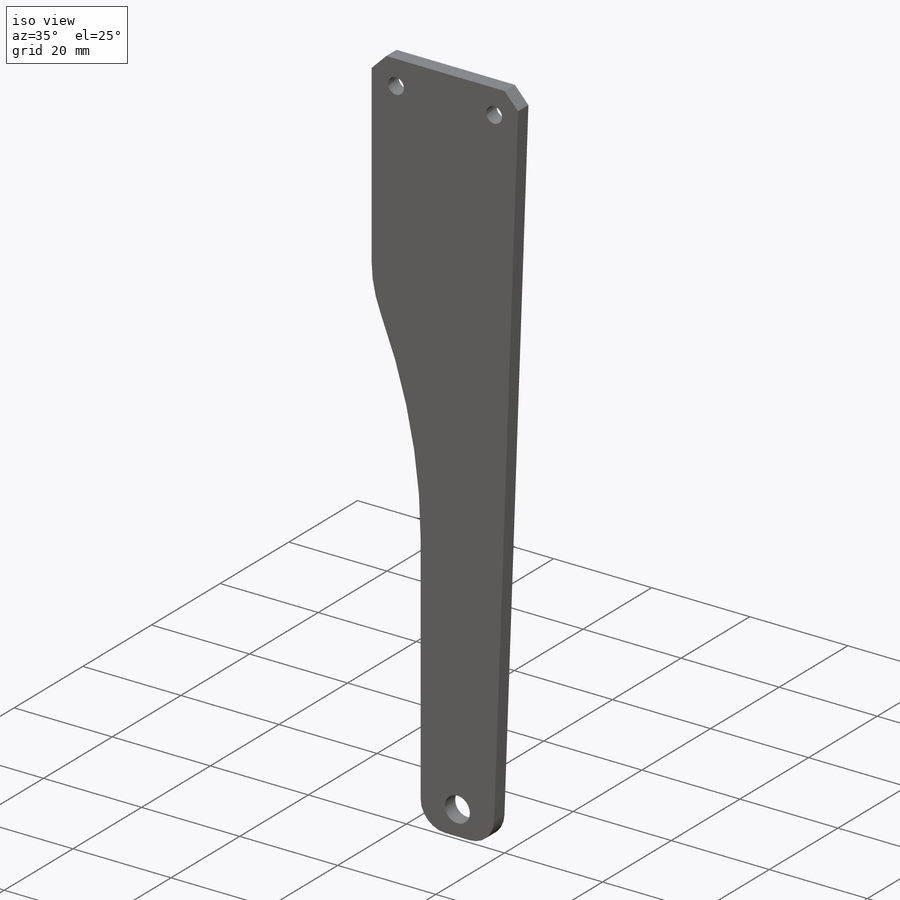
[diagram: iso view]
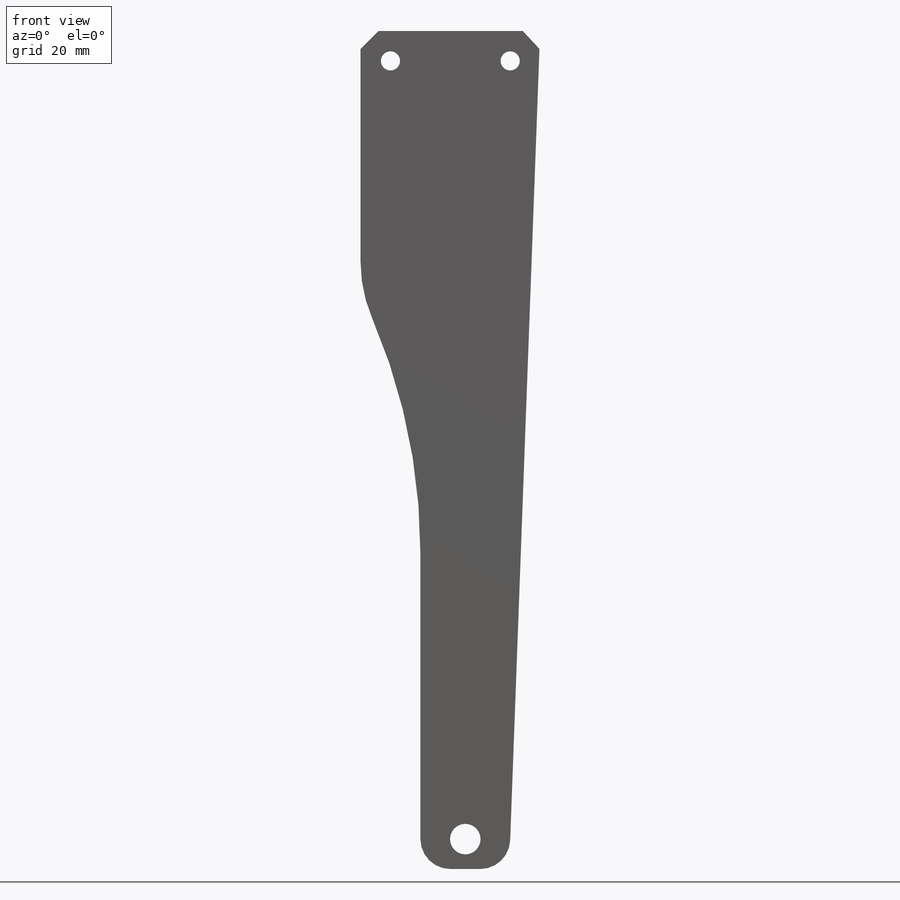
[diagram: front view]
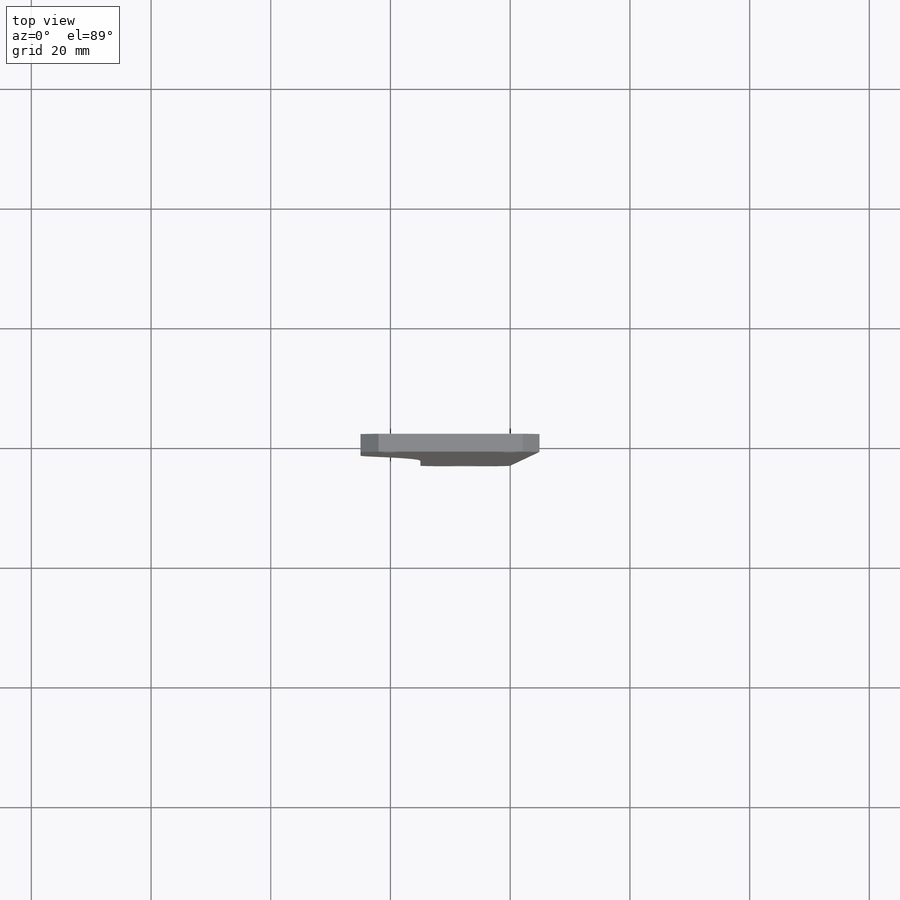
[diagram: top view]
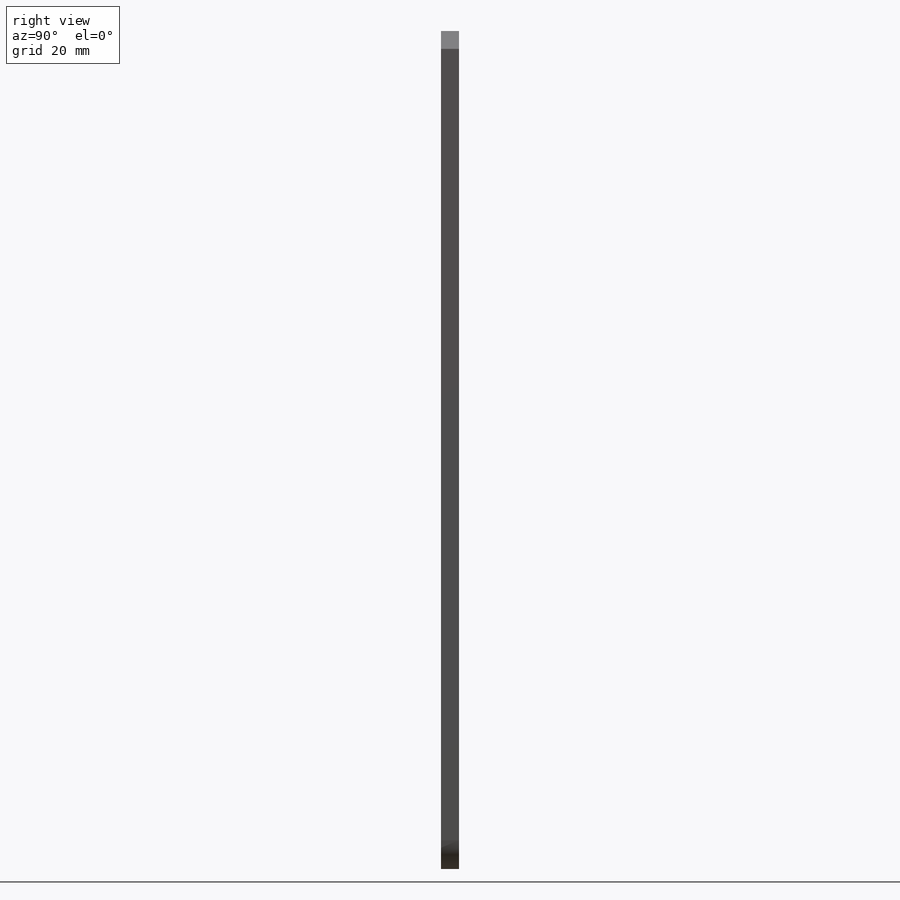
[diagram: right view]
SOLIDWORKS PART (.sldprt)
format: sldprt  version: not decoded by parser v0  size: 343,040 bytes
history: native  units: mm
features: sketch x7, plane x3, cut_extrude x3, fillet x3, extrude x2, chamfer x2, material x1 (+10 scaffold rows collapsed)
feature tree (31):
  scaffold x10  (default folders/planes/origin — collapsed)
  material  "Thornel Mat VMA"
  plane  "前视基准面"
  plane  "上视基准面"
  plane  "右视基准面"
  sketch  "草图1"  dims[c1.D1=3.2mm c1.D3=3.2mm c1.D4=3.2mm c1.D2=20.0mm c2.D4=65.0mm c2.D5=20.0mm c2.D6=10.0mm c2.D7=10.0mm c2.D8=20.0mm c2.D9=5.0mm c2.D10=25.0mm c2.D11=10.0mm c3.D5=80.0mm c3.D6=30.0mm c3.D7=10.0mm c4.D5=140.0mm c4.D6=30.0mm c4.D7=65.0mm c4.D4=5.0mm]
  extrude  "凸台-拉伸1"  Depth=3mm
  sketch  "草图4"  dims[D1=55.0mm]
  cut_extrude  "切除-拉伸3"  [1 undecoded]
  chamfer  "倒角1"  Distance=2.5mm Angle=45deg
  sketch  "草图5"  dims[D3=5.1mm D1=5.0mm D2=8.0mm D4=20.0mm]
  cut_extrude  "切除-拉伸4"  [1 undecoded]
  sketch  "草图9"
  extrude  "凸台-拉伸5"  [1 undecoded]
  sketch  "草图11"  dims[D5=3.0mm D6=1.0mm D7=5.0mm]
  fillet  "圆角2"  Radius=65mm
  fillet  "圆角3"  Radius=115mm
  fillet  "圆角4"  Radius=5mm
  sketch  "草图13"  dims[D1=5.0mm]
  cut_extrude  "切除-拉伸6"  [1 undecoded]
  chamfer  "倒角2"  Distance=3mm Angle=45deg
  sketch  "草图14"
decode coverage: 11 of 17 modeling features carry decoded parameters
note: 4 parameter values undecoded
summary: no parameter record found for 4 features
note: suppression state not decoded; provenance and decode notes live in map.json
